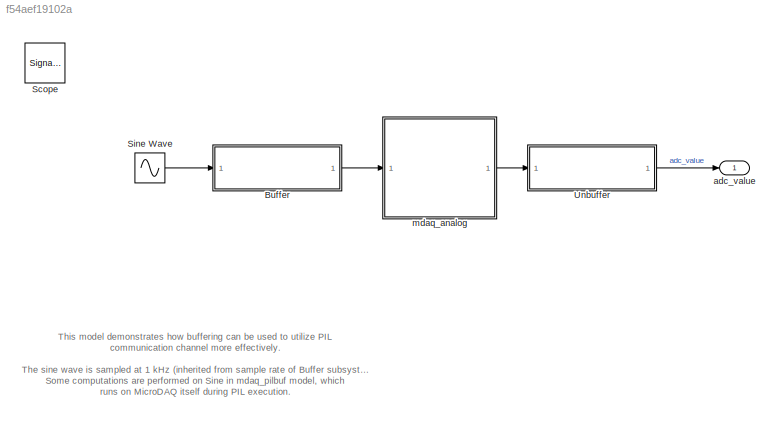
MODEL slx_f54aef19102a
KIND model
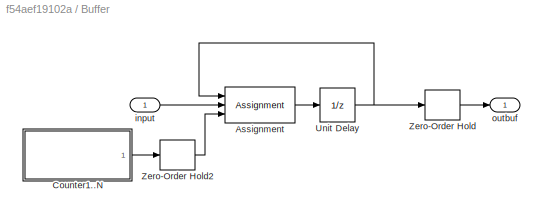
BLOCK [SubSystem] Buffer
  FunctionWithSeparateData = off
  MaskHideContents = off
  MinAlgLoopOccurrences = off
  Opaque = off
  Ports = [1, 1]
  PropExecContextOutsideSubsystem = off
  RTWSystemCode = Auto
  RequestExecContextInheritance = off
  TreatAsAtomicUnit = on
  Variant = off
BLOCK [Assignment] Buffer/Assignment
  IndexOptions = Index vector (port)
  Indices = 1
  OutputSizes = 100
  Ports = [3, 1]
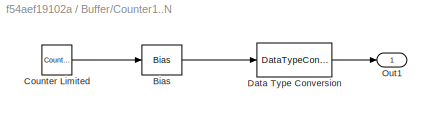
BLOCK [SubSystem] Buffer/Counter1..N
  FunctionWithSeparateData = off
  MaskHideContents = off
  MinAlgLoopOccurrences = off
  Opaque = off
  Ports = [0, 1]
  PropExecContextOutsideSubsystem = off
  RTWSystemCode = Auto
  RequestExecContextInheritance = off
  Variant = off
BLOCK [Bias] Buffer/Counter1..N/Bias
  Bias = 1
  SaturateOnIntegerOverflow = off
BLOCK [Reference] Buffer/Counter1..N/Counter Limited  REF=simulink/Sources/Counter
Limited
  Ports = [0, 1]
  SourceBlock = simulink/Sources/Counter\nLimited
  SourceType = Counter Limited
  tsamp = -1
  uplimit = BufSize-1
BLOCK [DataTypeConversion] Buffer/Counter1..N/Data Type Conversion
  RndMeth = Floor
  SaturateOnIntegerOverflow = off
BLOCK [Outport] Buffer/Counter1..N/Out1
  IconDisplay = Port number
BLOCK [UnitDelay] Buffer/Unit Delay
  InitialCondition = zeros(BufSize,1)
  InputProcessing = Elements as channels (sample based)
  SampleTime = Ts
BLOCK [ZeroOrderHold] Buffer/Zero-Order Hold
  SampleTime = BufSize*Ts
BLOCK [ZeroOrderHold] Buffer/Zero-Order Hold2
  SampleTime = Ts
BLOCK [Inport] Buffer/input
  IconDisplay = Port number
  SampleTime = Ts
BLOCK [Outport] Buffer/outbuf
  IconDisplay = Port number
BLOCK [SignalViewerScope] Scope
  DataFormat = Array
  Decimation = 1
  Grid = on
  IOType = viewer
  LimitDataPoints = on
  MaxDataPoints = 7500
  NumInputPorts = 4
  Ports = []
  SampleInput = off
  SampleTime = -1
  SaveName = ScopeData
  SaveToWorkspace = off
  ShowLegends = off
  TickLabels = OneTimeTick
  TimeRange = auto
  YMax = 3.75~5~3.5~75000
  YMin = 1.25~0~1.5~0
  ZoomMode = on
BLOCK [Sin] Sine Wave
  Bias = 2.5
  Ports = [0, 1]
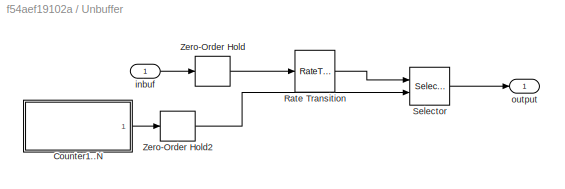
BLOCK [SubSystem] Unbuffer
  FunctionWithSeparateData = off
  MaskHideContents = off
  MinAlgLoopOccurrences = off
  Opaque = off
  Ports = [1, 1]
  PropExecContextOutsideSubsystem = off
  RTWSystemCode = Auto
  RequestExecContextInheritance = off
  TreatAsAtomicUnit = on
  Variant = off
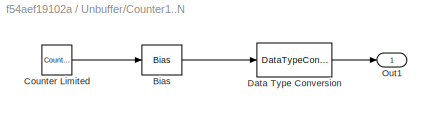
BLOCK [SubSystem] Unbuffer/Counter1..N
  FunctionWithSeparateData = off
  MaskHideContents = off
  MinAlgLoopOccurrences = off
  Opaque = off
  Ports = [0, 1]
  PropExecContextOutsideSubsystem = off
  RTWSystemCode = Auto
  RequestExecContextInheritance = off
  Variant = off
BLOCK [Bias] Unbuffer/Counter1..N/Bias
  Bias = 1
  SaturateOnIntegerOverflow = off
BLOCK [Reference] Unbuffer/Counter1..N/Counter Limited  REF=simulink/Sources/Counter
Limited
  Ports = [0, 1]
  SourceBlock = simulink/Sources/Counter\nLimited
  SourceType = Counter Limited
  tsamp = -1
  uplimit = BufSize-1
BLOCK [DataTypeConversion] Unbuffer/Counter1..N/Data Type Conversion
  RndMeth = Floor
  SaturateOnIntegerOverflow = off
BLOCK [Outport] Unbuffer/Counter1..N/Out1
  IconDisplay = Port number
BLOCK [RateTransition] Unbuffer/Rate Transition
BLOCK [Selector] Unbuffer/Selector
  IndexOptions = Index vector (port)
  Indices = [1 3]
  InputPortWidth = BufSize
  OutputSizes = 1
  Ports = [2, 1]
BLOCK [ZeroOrderHold] Unbuffer/Zero-Order Hold
  SampleTime = BufSize*Ts
BLOCK [ZeroOrderHold] Unbuffer/Zero-Order Hold2
  SampleTime = Ts
BLOCK [Inport] Unbuffer/inbuf
  IconDisplay = Port number
  SampleTime = Ts
BLOCK [Outport] Unbuffer/output
  IconDisplay = Port number
BLOCK [Outport] adc_value
  IconDisplay = Port number
BLOCK [ModelReference] mdaq_analog
  CopyOfModelName = mdaq_analog
  ModelNameDialog = mdaq_analog
  ModelReferenceVersion = 1.42
  Ports = [1, 1]
  Variant = off
ANNOTATION (root): This model demonstrates how buffering can be used to utilize PIL communication channel more effectively. The sine wave is sampled at 1 kHz (inherited from sample rate of Buffer subsystem). Some computations are performed on Sine in mdaq_pilbuf model, which runs on MicroDAQ itself during PIL execution. Instead of passing one sample of Sine each 0.001 seconds, we buffer it. The buffer size is 100 sa...<+423ch>
LINE Buffer/Assignment:1 -> Buffer/Unit Delay:1
LINE Buffer/Counter1..N/Bias:1 -> Buffer/Counter1..N/Data Type Conversion:1
LINE Buffer/Counter1..N/Counter Limited:1 -> Buffer/Counter1..N/Bias:1
LINE Buffer/Counter1..N/Data Type Conversion:1 -> Buffer/Counter1..N/Out1:1
LINE Buffer/Counter1..N:1 -> Buffer/Zero-Order Hold2:1
NET Buffer/Unit Delay:1 -> Buffer/Assignment:1, Buffer/Zero-Order Hold:1
LINE Buffer/Zero-Order Hold2:1 -> Buffer/Assignment:3
LINE Buffer/Zero-Order Hold:1 -> Buffer/outbuf:1
LINE Buffer/input:1 -> Buffer/Assignment:2
LINE Buffer:1 -> mdaq_analog:1
LINE Sine Wave:1 -> Buffer:1
LINE Unbuffer/Counter1..N/Bias:1 -> Unbuffer/Counter1..N/Data Type Conversion:1
LINE Unbuffer/Counter1..N/Counter Limited:1 -> Unbuffer/Counter1..N/Bias:1
LINE Unbuffer/Counter1..N/Data Type Conversion:1 -> Unbuffer/Counter1..N/Out1:1
LINE Unbuffer/Counter1..N:1 -> Unbuffer/Zero-Order Hold2:1
LINE Unbuffer/Rate Transition:1 -> Unbuffer/Selector:1
LINE Unbuffer/Selector:1 -> Unbuffer/output:1
LINE Unbuffer/Zero-Order Hold2:1 -> Unbuffer/Selector:2
LINE Unbuffer/Zero-Order Hold:1 -> Unbuffer/Rate Transition:1
LINE Unbuffer/inbuf:1 -> Unbuffer/Zero-Order Hold:1
LINE Unbuffer:1 -> adc_value:1
LINE mdaq_analog:1 -> Unbuffer:1
note: NET lines group one-source signal fan-out (src -> all destinations, sorted); 1:1 wires keep LINE
